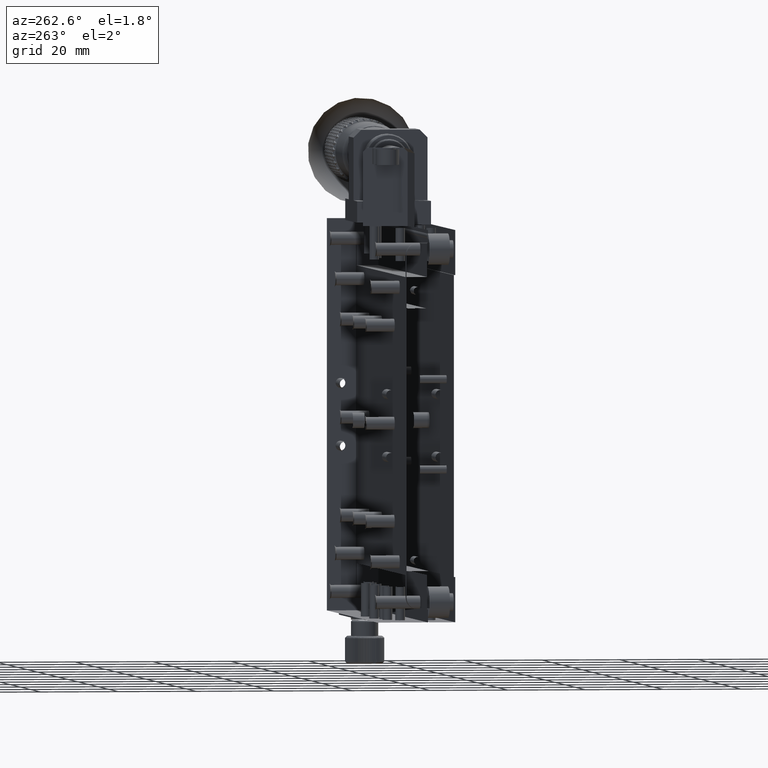
[diagram: clean part render]
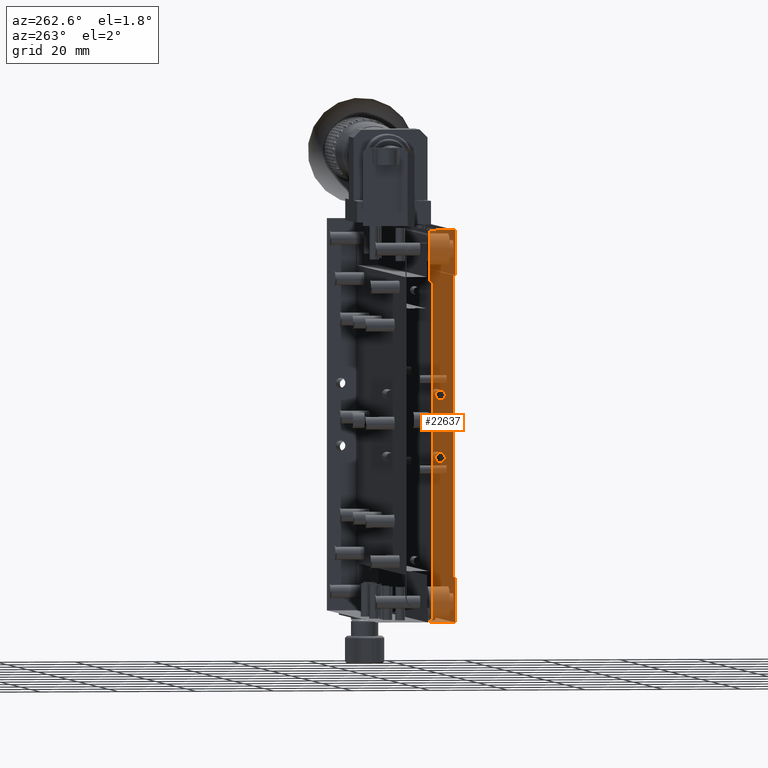
[diagram: same view with one face highlighted and labeled with its STEP entity id]
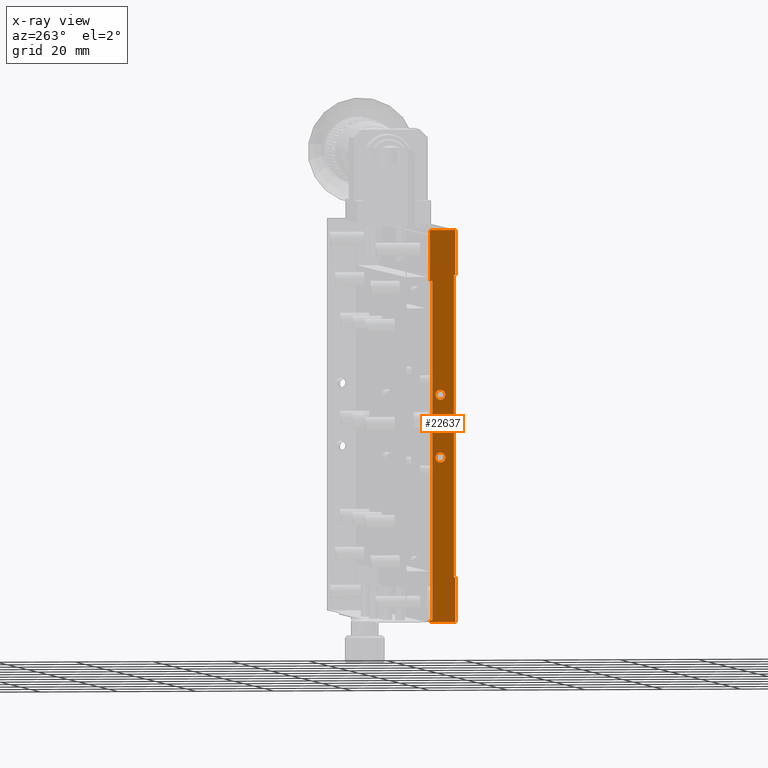
[diagram: x-ray of the same camera — body ghosted, the highlighted face saturated]
A machine part, auxiliary view. The second image highlights one B-rep face of the part: STEP entity #22637.
The next image is the same camera in x-ray: the body ghosted, the highlighted face saturated — about 0% of this face is hidden behind the body in this view.
In plain terms, the highlighted planar face has unit normal (1, -0, 0).
Its self-contained STEP definition (entity closure, byte-faithful):
#427 = CARTESIAN_POINT ( 'NONE',  ( -36.19890064642101635, -8.939356747036184103, -20.63046690101566938 ) ) ;
#699 = CARTESIAN_POINT ( 'NONE',  ( -36.19890064642102345, -8.290949976602934868, -49.99998750000001024 ) ) ;
#833 = CARTESIAN_POINT ( 'NONE',  ( -36.19890064642101635, -12.14588008402597730, 7.521463629026659881 ) ) ;
#1227 = VECTOR ( 'NONE', #65055, 1000.000000000000000 ) ;
#1523 = DIRECTION ( 'NONE',  ( 0.000000000000000000, 1.000000000000000000, 0.000000000000000000 ) ) ;
#3721 = CARTESIAN_POINT ( 'NONE',  ( -36.19890064642101635, -10.99094997660293416, 6.750012500000019955 ) ) ;
#4203 = CARTESIAN_POINT ( 'NONE',  ( -36.19890064642101635, -8.290949976602934868, -49.44570660152349717 ) ) ;
#4497 = CARTESIAN_POINT ( 'NONE',  ( -36.19890064642101635, -8.507085566747351280, -49.44570660152349717 ) ) ;
#4620 = CARTESIAN_POINT ( 'NONE',  ( -36.19890064642100924, -11.58747459379298661, -6.899868177852229501 ) ) ;
#5096 = CARTESIAN_POINT ( 'NONE',  ( -36.19890064642101635, -12.01623996683066231, -8.724379628012895793 ) ) ;
#5795 = CARTESIAN_POINT ( 'NONE',  ( -36.19890064642100924, -10.16793547856596014, 7.055207579936324080 ) ) ;
#5947 = CARTESIAN_POINT ( 'NONE',  ( -36.19890064642103056, -10.16793547856523539, -8.944792420062805505 ) ) ;
#6253 = EDGE_CURVE ( 'NONE', #80427, #50556, #71173, .T. ) ;
#6258 = ORIENTED_EDGE ( 'NONE', *, *, #34047, .T. ) ;
#7186 = CARTESIAN_POINT ( 'NONE',  ( -36.19890064642102345, -11.07033719248106962, 6.750012500000020843 ) ) ;
#7668 = CARTESIAN_POINT ( 'NONE',  ( -36.19890064642102345, -12.13680004577972760, 7.500006041613407781 ) ) ;
#7714 = CARTESIAN_POINT ( 'NONE',  ( -36.19891314642102031, -8.290949976602933091, 37.00001249999999686 ) ) ;
#8359 = CARTESIAN_POINT ( 'NONE',  ( -36.19890064642101635, -14.79094997660293309, -49.99998750000001024 ) ) ;
#8595 = DIRECTION ( 'NONE',  ( 1.000000000000000000, -0.000000000000000000, 0.000000000000000000 ) ) ;
#8635 = CARTESIAN_POINT ( 'NONE',  ( -36.19890064642102345, -12.18018308340306355, 8.385651498485945154 ) ) ;
#10493 = CARTESIAN_POINT ( 'NONE',  ( -36.19890064642101635, -11.07033719248242143, -9.249987499999981821 ) ) ;
#10551 = ORIENTED_EDGE ( 'NONE', *, *, #29337, .T. ) ;
#10556 = ORIENTED_EDGE ( 'NONE', *, *, #51100, .F. ) ;
#10875 = EDGE_CURVE ( 'NONE', #84941, #14784, #64975, .T. ) ;
#10988 = CARTESIAN_POINT ( 'NONE',  ( -36.19890064642101635, -11.30345394851186214, -6.779242374557352235 ) ) ;
#11866 = VERTEX_POINT ( 'NONE', #69565 ) ;
#12916 = LINE ( 'NONE', #35883, #84294 ) ;
#13134 = CARTESIAN_POINT ( 'NONE',  ( -36.19890064642101635, -9.892047997137092707, 7.379723948016257751 ) ) ;
#13282 = CARTESIAN_POINT ( 'NONE',  ( -36.19890064642103056, -10.56790878010031598, -6.823581793808284779 ) ) ;
#13485 = CARTESIAN_POINT ( 'NONE',  ( -36.19890064642101635, -14.79094997660293132, 38.50001249999998265 ) ) ;
#13706 = CARTESIAN_POINT ( 'NONE',  ( -36.19890064642101635, -14.79094997660293132, 50.00001250000000397 ) ) ;
#14115 = CARTESIAN_POINT ( 'NONE',  ( -36.19890064642101635, -9.770272449035102724, 8.312687014784330586 ) ) ;
#14262 = CARTESIAN_POINT ( 'NONE',  ( -36.19890064642102345, -10.04614505653979606, -7.176973001962644538 ) ) ;
#14545 = CARTESIAN_POINT ( 'NONE',  ( -36.19890064642102345, -12.16737145667775799, 8.423013804350192757 ) ) ;
#14663 = EDGE_CURVE ( 'NONE', #50556, #24835, #47726, .T. ) ;
#14748 = CARTESIAN_POINT ( 'NONE',  ( -36.19890064642100924, -9.985328543228835230, -8.762028089323912639 ) ) ;
#14784 = VERTEX_POINT ( 'NONE', #8359 ) ;
#15027 = CARTESIAN_POINT ( 'NONE',  ( -36.19890064642102345, -11.18739240275871794, 6.760983077959017429 ) ) ;
#15224 = CARTESIAN_POINT ( 'NONE',  ( -36.19890064642101635, -9.820797925667006822, -8.440084616323238365 ) ) ;
#15904 = VECTOR ( 'NONE', #85769, 1000.000000000000000 ) ;
#15986 = CARTESIAN_POINT ( 'NONE',  ( -36.19890064642101635, -10.99094997660293416, 9.250012499999966664 ) ) ;
#17820 = CARTESIAN_POINT ( 'NONE',  ( -36.19890064642100924, -14.44094997660293522, 38.50001249999998265 ) ) ;
#17863 = DIRECTION ( 'NONE',  ( 0.000000000000000000, 0.000000000000000000, -1.000000000000000000 ) ) ;
#18812 = CARTESIAN_POINT ( 'NONE',  ( -36.19890064642100924, -12.21162750417075848, -8.312662014784340414 ) ) ;
#19002 = VECTOR ( 'NONE', #25817, 1000.000000000000000 ) ;
#19319 = DIRECTION ( 'NONE',  ( 0.000000000000000000, 1.000000000000000000, 0.000000000000000000 ) ) ;
#20259 = CARTESIAN_POINT ( 'NONE',  ( -36.19890064642101635, -12.14588008402597552, -8.478536370973342784 ) ) ;
#20481 = CARTESIAN_POINT ( 'NONE',  ( -36.19890064642102345, -10.37066142461882379, 9.098914479465456395 ) ) ;
#21375 = CARTESIAN_POINT ( 'NONE',  ( -36.19890064642100924, -11.41399117310479738, 6.823606793808284721 ) ) ;
#21430 = CARTESIAN_POINT ( 'NONE',  ( -36.19890064642102345, -10.60523917224376156, 9.189217213810533025 ) ) ;
#21581 = CARTESIAN_POINT ( 'NONE',  ( -36.19890064642101635, -10.60523917224261758, -6.810782786189457205 ) ) ;
#21731 = CARTESIAN_POINT ( 'NONE',  ( -36.19890064642102345, -8.290949976602934868, -49.99998750000001024 ) ) ;
#22067 = CARTESIAN_POINT ( 'NONE',  ( -36.19890064642102345, -10.45197030957688611, -9.128090125125178034 ) ) ;
#22076 = VERTEX_POINT ( 'NONE', #23627 ) ;
#22349 = CARTESIAN_POINT ( 'NONE',  ( -36.19890064642101635, -11.52992964362830364, 9.128115125125738416 ) ) ;
#22397 = CARTESIAN_POINT ( 'NONE',  ( -36.19890064642100924, -10.91156276072453046, 9.250012499999966664 ) ) ;
#22546 = CARTESIAN_POINT ( 'NONE',  ( -36.19890064642101635, -10.66148796214867822, -6.792955597006091750 ) ) ;
#22637 = ADVANCED_FACE ( 'NONE', ( #23762, #84840, #47141 ), #39839, .T. ) ;
#23627 = CARTESIAN_POINT ( 'NONE',  ( -36.19891314642101321, -8.939356747036180550, 37.00001249999998976 ) ) ;
#23762 = FACE_OUTER_BOUND ( 'NONE', #32615, .T. ) ;
#23793 = VERTEX_POINT ( 'NONE', #15986 ) ;
#23854 = CARTESIAN_POINT ( 'NONE',  ( -36.19890064642100924, -10.67844600469533312, 6.779267374557340631 ) ) ;
#24698 = CARTESIAN_POINT ( 'NONE',  ( -36.19890064642102345, -11.61123852858858996, -9.098889479463935004 ) ) ;
#24835 = VERTEX_POINT ( 'NONE', #61733 ) ;
#25169 = B_SPLINE_CURVE_WITH_KNOTS ( 'NONE', 3,
 ( #7714, #64971, #94800, #28781 ),
 .UNSPECIFIED., .F., .F.,
 ( 4, 4 ),
 ( 0.000000000000000000, 1.000000000000000000 ),
 .UNSPECIFIED. ) ;
#25817 = DIRECTION ( 'NONE',  ( -0.000000000000000000, -1.000000000000000000, -0.000000000000000000 ) ) ;
#25829 = VERTEX_POINT ( 'NONE', #35904 ) ;
#27021 = ORIENTED_EDGE ( 'NONE', *, *, #43540, .T. ) ;
#27307 = B_SPLINE_CURVE_WITH_KNOTS ( 'NONE', 3,
 ( #76053, #10493, #47125, #45696, #32024, #91688, #69694, #24698, #77016, #92179, #5096, #79441, #85802, #65255, #20259, #18812, #41274, #93140, #78480, #56932, #64765, #34921, #71156, #41770, #70683, #55949, #63799, #4620, #93632, #63307, #48588, #10988, #86785, #86303 ),
 .UNSPECIFIED., .F., .F.,
 ( 4, 1, 1, 2, 2, 2, 1, 1, 2, 2, 2, 1, 1, 2, 2, 2, 1, 1, 2, 2, 4 ),
 ( 0.000000000000000000, 0.06249999999999848732, 0.09374999999999841793, 0.1093749999999981959, 0.1249999999999979738, 0.2499999999999959477, 0.3124999999999949485, 0.3437499999999947820, 0.3593749999999952816, 0.3749999999999957812, 0.4999999999999938938, 0.5624999999999928946, 0.5937499999999924505, 0.6093749999999924505, 0.6249999999999925615, 0.7499999999999970024, 0.8124999999999993339, 0.8437500000000002220, 0.8593750000000007772, 0.8750000000000012212, 1.000000000000000000 ),
 .UNSPECIFIED. ) ;
#27391 = ORIENTED_EDGE ( 'NONE', *, *, #14663, .T. ) ;
#27877 = ORIENTED_EDGE ( 'NONE', *, *, #43473, .T. ) ;
#27968 = CARTESIAN_POINT ( 'NONE',  ( -36.19890064642102345, -10.67844600469264904, -9.220732625442661146 ) ) ;
#28307 = DIRECTION ( 'NONE',  ( 0.000000000000000000, 0.000000000000000000, -1.000000000000000000 ) ) ;
#28781 = CARTESIAN_POINT ( 'NONE',  ( -36.19891314642101321, -8.939356747036180550, 37.00001249999998976 ) ) ;
#29185 = VERTEX_POINT ( 'NONE', #39959 ) ;
#29220 = CARTESIAN_POINT ( 'NONE',  ( -36.19890064642101635, -11.71534210461376269, 9.025302490229297092 ) ) ;
#29337 = EDGE_CURVE ( 'NONE', #69829, #84941, #49699, .T. ) ;
#29751 = CARTESIAN_POINT ( 'NONE',  ( -36.19890064642102345, -9.890830654456095772, 8.596537117191173749 ) ) ;
#29769 = CARTESIAN_POINT ( 'NONE',  ( -36.19890064642101635, -8.939356747036184103, 8.184772799492163742 ) ) ;
#30181 = CARTESIAN_POINT ( 'NONE',  ( -36.19890064642100924, -11.49095643498906938, 9.145862569177163337 ) ) ;
#30382 = LINE ( 'NONE', #74400, #42388 ) ;
#30473 = CARTESIAN_POINT ( 'NONE',  ( -36.19890064642100924, -14.44094997660293522, -38.49998749999999603 ) ) ;
#30514 = CARTESIAN_POINT ( 'NONE',  ( -36.19890064642101635, -8.290949976602934868, -49.63046690101567293 ) ) ;
#30603 = CARTESIAN_POINT ( 'NONE',  ( -36.19890064642101635, -14.79094997660293132, -49.44570660152349717 ) ) ;
#30697 = CARTESIAN_POINT ( 'NONE',  ( -36.19890064642100214, -10.49094351821675630, 6.854162430822731800 ) ) ;
#31179 = CARTESIAN_POINT ( 'NONE',  ( -36.19890064642101635, -10.39442535941320500, 6.899893177851711634 ) ) ;
#32024 = CARTESIAN_POINT ( 'NONE',  ( -36.19890064642101635, -11.37666078096302158, -9.189192213810542853 ) ) ;
#32615 = EDGE_LOOP ( 'NONE', ( #10551, #87305, #27021, #65158, #27391, #6258, #63811, #79551, #60248, #95566, #27877, #10556 ) ) ;
#33483 = LINE ( 'NONE', #86316, #34583 ) ;
#34047 = EDGE_CURVE ( 'NONE', #24835, #22076, #85915, .T. ) ;
#34583 = VECTOR ( 'NONE', #19319, 1000.000000000000000 ) ;
#34921 = CARTESIAN_POINT ( 'NONE',  ( -36.19890064642102345, -12.16737145667775088, -7.576986195649650924 ) ) ;
#35274 = CARTESIAN_POINT ( 'NONE',  ( -36.19890064642102345, -9.740916325652348107, -8.079289612622405414 ) ) ;
#35618 = CARTESIAN_POINT ( 'NONE',  ( -36.19890064642102345, -10.55085286027957459, 9.170164550935828274 ) ) ;
#35883 = CARTESIAN_POINT ( 'NONE',  ( -36.19890064642101635, -14.79094997660293487, -49.44570660152349717 ) ) ;
#35904 = CARTESIAN_POINT ( 'NONE',  ( -36.19890064642102345, -14.79094997660293309, 50.00001249999999686 ) ) ;
#36261 = CARTESIAN_POINT ( 'NONE',  ( -36.19890064642102345, -9.862847351477480373, -7.461007832974239307 ) ) ;
#36359 = EDGE_CURVE ( 'NONE', #25829, #71212, #12916, .T. ) ;
#36590 = CARTESIAN_POINT ( 'NONE',  ( -36.19890064642101635, -9.965659986375204227, 8.724404628012884189 ) ) ;
#36731 = CARTESIAN_POINT ( 'NONE',  ( -36.19890064642102345, -9.741017278504182642, -7.841383274755217236 ) ) ;
#37501 = CARTESIAN_POINT ( 'NONE',  ( -36.19890064642102345, -11.61123852858713157, 6.901110520534336601 ) ) ;
#37826 = ORIENTED_EDGE ( 'NONE', *, *, #55882, .T. ) ;
#38443 = CARTESIAN_POINT ( 'NONE',  ( -36.19890064642101635, -11.99657140997865135, 8.762053089322556332 ) ) ;
#39839 = PLANE ( 'NONE',  #76726 ) ;
#39959 = CARTESIAN_POINT ( 'NONE',  ( -36.19890064642101635, -8.290949976602934868, 50.00001249999999686 ) ) ;
#40458 = CARTESIAN_POINT ( 'NONE',  ( -36.19890064642101635, -14.79094997660293132, -38.49998750000000314 ) ) ;
#41155 = CARTESIAN_POINT ( 'NONE',  ( -36.19891272975981877, -8.290949976602934868, -49.44570660440748355 ) ) ;
#41274 = CARTESIAN_POINT ( 'NONE',  ( -36.19890064642101635, -12.24088267470169100, -8.158591725243169890 ) ) ;
#41770 = CARTESIAN_POINT ( 'NONE',  ( -36.19890064642102345, -12.08985195606879159, -7.379698948016012672 ) ) ;
#42388 = VECTOR ( 'NONE', #1523, 1000.000000000000000 ) ;
#43098 = CARTESIAN_POINT ( 'NONE',  ( -36.19890064642102345, -9.801716869802813648, -8.385626498486919544 ) ) ;
#43473 = EDGE_CURVE ( 'NONE', #71212, #79014, #33483, .T. ) ;
#43540 = EDGE_CURVE ( 'NONE', #14784, #80427, #30382, .T. ) ;
#43864 = CARTESIAN_POINT ( 'NONE',  ( -36.19890064642102345, -12.09106929874989511, 7.403487882809122844 ) ) ;
#43914 = CARTESIAN_POINT ( 'NONE',  ( -36.19890064642102345, -9.740916325652348107, 7.920710387378273154 ) ) ;
#44062 = CARTESIAN_POINT ( 'NONE',  ( -36.19890064642101635, -9.836019869179901676, -7.521438629026504508 ) ) ;
#44340 = CARTESIAN_POINT ( 'NONE',  ( -36.19890064642102345, -12.16110202753868741, 8.440109616323372421 ) ) ;
#44467 = CARTESIAN_POINT ( 'NONE',  ( -36.19890064642101635, -10.99094997660293593, -6.749987500000033336 ) ) ;
#44532 = CARTESIAN_POINT ( 'NONE',  ( -36.19890064642101635, -10.99094997660293593, -9.249987499999980045 ) ) ;
#44676 = ORIENTED_EDGE ( 'NONE', *, *, #56339, .T. ) ;
#44791 = CARTESIAN_POINT ( 'NONE',  ( -36.19890064642100924, -12.24098362755352021, 8.079314612621237401 ) ) ;
#44850 = CARTESIAN_POINT ( 'NONE',  ( -36.19890064642101635, -9.751861665398385171, 7.803719004542941207 ) ) ;
#45330 = CARTESIAN_POINT ( 'NONE',  ( -36.19890064642101635, -10.51237978777001381, 6.845090842311309487 ) ) ;
#45621 = CARTESIAN_POINT ( 'NONE',  ( -36.19891272975981877, -8.290949976602934868, -49.44570660440748355 ) ) ;
#45696 = CARTESIAN_POINT ( 'NONE',  ( -36.19890064642102345, -11.32041199105684193, -9.207019402993918078 ) ) ;
#46458 = EDGE_CURVE ( 'NONE', #23793, #95103, #83380, .T. ) ;
#47125 = CARTESIAN_POINT ( 'NONE',  ( -36.19890064642101635, -11.18739240276108582, -9.239016922040985236 ) ) ;
#47141 = FACE_BOUND ( 'NONE', #52576, .T. ) ;
#47726 = B_SPLINE_CURVE_WITH_KNOTS ( 'NONE', 3,
 ( #41155, #4497, #48956, #92552 ),
 .UNSPECIFIED., .F., .F.,
 ( 4, 4 ),
 ( 0.000000000000000000, 1.000000000000000000 ),
 .UNSPECIFIED. ) ;
#48588 = CARTESIAN_POINT ( 'NONE',  ( -36.19890064642102345, -11.46952016543569464, -6.845065842311323756 ) ) ;
#48956 = CARTESIAN_POINT ( 'NONE',  ( -36.19890064642101635, -8.723221156891765915, -49.44570660152349717 ) ) ;
#49699 = LINE ( 'NONE', #40458, #19002 ) ;
#50276 = CARTESIAN_POINT ( 'NONE',  ( -36.19890064642102345, -10.22890938727856991, 9.005633933373355049 ) ) ;
#50556 = VERTEX_POINT ( 'NONE', #94128 ) ;
#50834 = LINE ( 'NONE', #13706, #1227 ) ;
#51100 = EDGE_CURVE ( 'NONE', #69829, #79014, #55918, .T. ) ;
#51178 = CARTESIAN_POINT ( 'NONE',  ( -36.19890064642102345, -12.08985195606909180, 8.620301051983965124 ) ) ;
#51234 = CARTESIAN_POINT ( 'NONE',  ( -36.19890064642102345, -10.56790878010094659, 9.176418206191703675 ) ) ;
#51384 = CARTESIAN_POINT ( 'NONE',  ( -36.19890064642102345, -10.55085286027987834, -6.829835449063912378 ) ) ;
#51716 = CARTESIAN_POINT ( 'NONE',  ( -36.19890064642101635, -9.801716869802811871, 7.614373501513643561 ) ) ;
#51862 = CARTESIAN_POINT ( 'NONE',  ( -36.19890064642101635, -10.83181880034342370, -9.249987499999980045 ) ) ;
#52147 = CARTESIAN_POINT ( 'NONE',  ( -36.19890064642101635, -11.30345394851159568, 9.220757625442647765 ) ) ;
#52200 = CARTESIAN_POINT ( 'NONE',  ( -36.19890064642103056, -10.04614505654036805, 8.823026998038068669 ) ) ;
#52350 = CARTESIAN_POINT ( 'NONE',  ( -36.19890064642103766, -9.770272449035109830, -7.687312985217025663 ) ) ;
#52576 = EDGE_LOOP ( 'NONE', ( #37826, #44676 ) ) ;
#52904 = B_SPLINE_CURVE_WITH_KNOTS ( 'NONE', 3,
 ( #59725, #88594, #89562, #22546, #21581, #13282, #51384, #80284, #81256, #14262, #94972, #74397, #36261, #65627, #44062, #52350, #36731, #35274, #66603, #80760, #43098, #58264, #15224, #88115, #14748, #5947, #59239, #89070, #22067, #72483, #81740, #27968, #51862, #44532 ),
 .UNSPECIFIED., .F., .F.,
 ( 4, 1, 1, 2, 2, 2, 1, 1, 2, 2, 2, 1, 1, 2, 2, 2, 1, 1, 2, 2, 4 ),
 ( 0.000000000000000000, 0.06250000000000281719, 0.09375000000000353884, 0.1093750000000039968, 0.1250000000000044409, 0.2500000000000022760, 0.3125000000000016653, 0.3437500000000013878, 0.3593750000000009992, 0.3750000000000005551, 0.4999999999999996114, 0.5625000000000004441, 0.5937500000000008882, 0.6093750000000011102, 0.6250000000000014433, 0.7500000000000022204, 0.8125000000000026645, 0.8437500000000026645, 0.8593750000000026645, 0.8750000000000026645, 1.000000000000000000 ),
 .UNSPECIFIED. ) ;
#53122 = CARTESIAN_POINT ( 'NONE',  ( -36.19890064642100924, -12.19802604646952560, 8.329362816427460459 ) ) ;
#53658 = CARTESIAN_POINT ( 'NONE',  ( -36.19890064642101635, -10.99094997660293416, 6.750012500000019955 ) ) ;
#54081 = LINE ( 'NONE', #4203, #62082 ) ;
#55882 = EDGE_CURVE ( 'NONE', #73496, #94493, #27307, .T. ) ;
#55918 = LINE ( 'NONE', #17820, #15904 ) ;
#55949 = CARTESIAN_POINT ( 'NONE',  ( -36.19890064642102345, -11.81396447464015864, -7.055182579936725595 ) ) ;
#56339 = EDGE_CURVE ( 'NONE', #94493, #73496, #52904, .T. ) ;
#56796 = CARTESIAN_POINT ( 'NONE',  ( -36.19891314642101321, -8.939356747036180550, -49.44570660152349717 ) ) ;
#56932 = CARTESIAN_POINT ( 'NONE',  ( -36.19890064642102345, -12.19802604646952737, -7.670637183572106110 ) ) ;
#58264 = CARTESIAN_POINT ( 'NONE',  ( -36.19890064642102345, -9.814528496528122758, -8.422988804350737269 ) ) ;
#58598 = CARTESIAN_POINT ( 'NONE',  ( -36.19890064642101635, -10.99094997660293416, 9.250012499999966664 ) ) ;
#59239 = CARTESIAN_POINT ( 'NONE',  ( -36.19890064642101635, -10.26655784859068810, -9.025277490228138078 ) ) ;
#59725 = CARTESIAN_POINT ( 'NONE',  ( -36.19890064642101635, -10.99094997660293593, -6.749987500000033336 ) ) ;
#60006 = CARTESIAN_POINT ( 'NONE',  ( -36.19890064642101635, -10.99094997660293416, 9.250012499999966664 ) ) ;
#60248 = ORIENTED_EDGE ( 'NONE', *, *, #80937, .T. ) ;
#60487 = CARTESIAN_POINT ( 'NONE',  ( -36.19890064642101635, -12.11905260172799359, 7.461032832973825357 ) ) ;
#60542 = CARTESIAN_POINT ( 'NONE',  ( -36.19890064642100924, -10.83181880034611666, 6.750012500000019067 ) ) ;
#61733 = CARTESIAN_POINT ( 'NONE',  ( -36.19891314642101321, -8.939356747036180550, -49.44570660152349717 ) ) ;
#62082 = VECTOR ( 'NONE', #84421, 1000.000000000000000 ) ;
#63307 = CARTESIAN_POINT ( 'NONE',  ( -36.19890064642102345, -11.49095643498922925, -6.854137430822925481 ) ) ;
#63799 = CARTESIAN_POINT ( 'NONE',  ( -36.19890064642102345, -11.71534210461434000, -6.974697509771035087 ) ) ;
#63811 = ORIENTED_EDGE ( 'NONE', *, *, #95659, .F. ) ;
#64765 = CARTESIAN_POINT ( 'NONE',  ( -36.19890064642101635, -12.18018308340305644, -7.614348501513772405 ) ) ;
#64971 = CARTESIAN_POINT ( 'NONE',  ( -36.19892564642101718, -8.507085566747349503, 37.00001249999998976 ) ) ;
#64975 = LINE ( 'NONE', #94807, #83985 ) ;
#65055 = DIRECTION ( 'NONE',  ( -0.000000000000000000, -1.000000000000000000, -0.000000000000000000 ) ) ;
#65158 = ORIENTED_EDGE ( 'NONE', *, *, #6253, .T. ) ;
#65255 = CARTESIAN_POINT ( 'NONE',  ( -36.19890064642100924, -12.13680004577967786, -8.499993958386696136 ) ) ;
#65478 = CARTESIAN_POINT ( 'NONE',  ( -36.19890064642100924, -9.845099907426186903, 8.500018958386679202 ) ) ;
#65627 = CARTESIAN_POINT ( 'NONE',  ( -36.19890064642102345, -9.845099907425924002, -7.499981041613641430 ) ) ;
#66409 = CARTESIAN_POINT ( 'NONE',  ( -36.19890064642100924, -11.15008115286081924, 9.250012499999964888 ) ) ;
#66463 = CARTESIAN_POINT ( 'NONE',  ( -36.19890064642101635, -9.783873906736346271, 7.670662183571900883 ) ) ;
#66603 = CARTESIAN_POINT ( 'NONE',  ( -36.19890064642100924, -9.751861665398388723, -8.196280995458240071 ) ) ;
#67041 = ORIENTED_EDGE ( 'NONE', *, *, #46458, .T. ) ;
#67224 = EDGE_LOOP ( 'NONE', ( #85077, #67041 ) ) ;
#67374 = CARTESIAN_POINT ( 'NONE',  ( -36.19890064642101635, -11.81396447463982646, 8.944817420063467139 ) ) ;
#67424 = CARTESIAN_POINT ( 'NONE',  ( -36.19890064642101635, -10.66148796215044925, 9.207044402993904697 ) ) ;
#67860 = CARTESIAN_POINT ( 'NONE',  ( -36.19890064642101635, -11.37666078096188649, 6.810807786189456259 ) ) ;
#68187 = CARTESIAN_POINT ( 'NONE',  ( -36.19890064642101635, -8.290949976602934868, -49.81522720050783448 ) ) ;
#68207 = CARTESIAN_POINT ( 'NONE',  ( -36.19890064642101635, -14.79094997660293487, -38.49998749999999603 ) ) ;
#68332 = CARTESIAN_POINT ( 'NONE',  ( -36.19890064642101635, -12.01623996683081863, 7.275620371987507440 ) ) ;
#68672 = B_SPLINE_CURVE_WITH_KNOTS ( 'NONE', 3,
 ( #82503, #7186, #15027, #74687, #67860, #21375, #75172, #37501, #81541, #75640, #68332, #43864, #60487, #7668, #833, #88876, #90324, #44791, #89362, #53122, #8635, #14545, #44340, #51178, #38443, #67374, #29220, #81050, #22349, #30181, #74212, #52147, #66409, #60006 ),
 .UNSPECIFIED., .F., .F.,
 ( 4, 1, 1, 2, 2, 2, 1, 1, 2, 2, 2, 1, 1, 2, 2, 2, 1, 1, 2, 2, 4 ),
 ( 0.000000000000000000, 0.06250000000000342781, 0.09375000000000584255, 0.1093750000000064670, 0.1250000000000071054, 0.2500000000000109912, 0.3125000000000134337, 0.3437500000000149880, 0.3593750000000154321, 0.3750000000000158762, 0.5000000000000145439, 0.5625000000000152101, 0.5937500000000154321, 0.6093750000000155431, 0.6250000000000156541, 0.7500000000000119904, 0.8125000000000097700, 0.8437500000000096589, 0.8593750000000089928, 0.8750000000000082157, 1.000000000000000000 ),
 .UNSPECIFIED. ) ;
#69565 = CARTESIAN_POINT ( 'NONE',  ( -36.19891314642102031, -8.290949976602933091, 37.00001249999999686 ) ) ;
#69694 = CARTESIAN_POINT ( 'NONE',  ( -36.19890064642102345, -11.43104709292610188, -9.170139550936033501 ) ) ;
#69829 = VERTEX_POINT ( 'NONE', #30473 ) ;
#70683 = CARTESIAN_POINT ( 'NONE',  ( -36.19890064642100924, -11.99657140997800653, -7.237946910677068857 ) ) ;
#71011 = CARTESIAN_POINT ( 'NONE',  ( -36.19890064642101635, -10.99094997660293593, -9.249987499999980045 ) ) ;
#71156 = CARTESIAN_POINT ( 'NONE',  ( -36.19890064642101635, -12.16110202753872116, -7.559890383676630243 ) ) ;
#71173 = B_SPLINE_CURVE_WITH_KNOTS ( 'NONE', 3,
 ( #699, #68187, #30514, #45621 ),
 .UNSPECIFIED., .F., .F.,
 ( 4, 4 ),
 ( 0.000000000000000000, 1.000000000000000000 ),
 .UNSPECIFIED. ) ;
#71212 = VERTEX_POINT ( 'NONE', #13485 ) ;
#72047 = EDGE_CURVE ( 'NONE', #11866, #29185, #54081, .T. ) ;
#72483 = CARTESIAN_POINT ( 'NONE',  ( -36.19890064642102345, -10.49094351821641524, -9.145837569176853421 ) ) ;
#72816 = CARTESIAN_POINT ( 'NONE',  ( -36.19890064642100924, -9.985328543227366183, 7.237971910677827303 ) ) ;
#73496 = VERTEX_POINT ( 'NONE', #71011 ) ;
#74212 = CARTESIAN_POINT ( 'NONE',  ( -36.19890064642100924, -11.46952016543572483, 9.154934157688680685 ) ) ;
#74397 = CARTESIAN_POINT ( 'NONE',  ( -36.19890064642100924, -9.890830654455353255, -7.403462882809756174 ) ) ;
#74400 = CARTESIAN_POINT ( 'NONE',  ( -36.19890064642101635, -14.79094997660293132, -49.99998750000001024 ) ) ;
#74687 = CARTESIAN_POINT ( 'NONE',  ( -36.19890064642102345, -11.32041199105506912, 6.792980597006078369 ) ) ;
#74702 = EDGE_CURVE ( 'NONE', #95103, #23793, #68672, .T. ) ;
#74741 = CARTESIAN_POINT ( 'NONE',  ( -36.19890064642101635, -9.814528496528117429, 7.577011195649575370 ) ) ;
#75172 = CARTESIAN_POINT ( 'NONE',  ( -36.19890064642102345, -11.43104709292628485, 6.829860449064184102 ) ) ;
#75640 = CARTESIAN_POINT ( 'NONE',  ( -36.19890064642102345, -11.93575489666559797, 7.176998001962154206 ) ) ;
#76053 = CARTESIAN_POINT ( 'NONE',  ( -36.19890064642101635, -10.99094997660293593, -9.249987499999980045 ) ) ;
#76726 = AXIS2_PLACEMENT_3D ( 'NONE', #30603, #8595, #17863 ) ;
#77016 = CARTESIAN_POINT ( 'NONE',  ( -36.19890064642102345, -11.75299056592730729, -9.005608933373370206 ) ) ;
#77123 = CARTESIAN_POINT ( 'NONE',  ( -36.19890064642101635, -10.45197030957750073, 6.871909874874086555 ) ) ;
#78480 = CARTESIAN_POINT ( 'NONE',  ( -36.19890064642101635, -12.23003828780748314, -7.803694004543195284 ) ) ;
#79014 = VERTEX_POINT ( 'NONE', #93943 ) ;
#79441 = CARTESIAN_POINT ( 'NONE',  ( -36.19890064642102345, -12.09106929874977965, -8.596512117191181801 ) ) ;
#79551 = ORIENTED_EDGE ( 'NONE', *, *, #72047, .T. ) ;
#80139 = CARTESIAN_POINT ( 'NONE',  ( -36.19890064642100924, -9.820797925667145378, 7.559915383676584000 ) ) ;
#80284 = CARTESIAN_POINT ( 'NONE',  ( -36.19890064642102345, -10.37066142461644525, -6.901085520536644147 ) ) ;
#80427 = VERTEX_POINT ( 'NONE', #21731 ) ;
#80760 = CARTESIAN_POINT ( 'NONE',  ( -36.19890064642101635, -9.783873906736351600, -8.329337816428980190 ) ) ;
#80883 = DIRECTION ( 'NONE',  ( 0.000000000000000000, 0.000000000000000000, -1.000000000000000000 ) ) ;
#80937 = EDGE_CURVE ( 'NONE', #29185, #25829, #50834, .T. ) ;
#81050 = CARTESIAN_POINT ( 'NONE',  ( -36.19890064642102345, -11.58747459379256206, 9.100131822148016525 ) ) ;
#81107 = CARTESIAN_POINT ( 'NONE',  ( -36.19890064642100924, -9.862847351477954660, 8.538992167026352220 ) ) ;
#81256 = CARTESIAN_POINT ( 'NONE',  ( -36.19890064642101635, -10.22890938727971211, -6.994366066625228306 ) ) ;
#81541 = CARTESIAN_POINT ( 'NONE',  ( -36.19890064642102345, -11.75299056592711366, 6.994391066626169717 ) ) ;
#81589 = CARTESIAN_POINT ( 'NONE',  ( -36.19890064642101635, -10.79450755044668497, 9.239041922040973631 ) ) ;
#81740 = CARTESIAN_POINT ( 'NONE',  ( -36.19890064642101635, -10.51237978777034421, -9.154909157688690513 ) ) ;
#82080 = CARTESIAN_POINT ( 'NONE',  ( -36.19890064642101635, -9.836019869179891018, 8.478561370973327627 ) ) ;
#82503 = CARTESIAN_POINT ( 'NONE',  ( -36.19890064642101635, -10.99094997660293416, 6.750012500000019955 ) ) ;
#83380 = B_SPLINE_CURVE_WITH_KNOTS ( 'NONE', 3,
 ( #58598, #22397, #81589, #67424, #21430, #51234, #35618, #20481, #50276, #52200, #36590, #29751, #81107, #65478, #82080, #14115, #96264, #43914, #44850, #66463, #51716, #74741, #80139, #13134, #72816, #5795, #95316, #31179, #77123, #30697, #45330, #23854, #60542, #53658 ),
 .UNSPECIFIED., .F., .F.,
 ( 4, 1, 1, 2, 2, 2, 1, 1, 2, 2, 2, 1, 1, 2, 2, 2, 1, 1, 2, 2, 4 ),
 ( 0.000000000000000000, 0.06249999999999837630, 0.09374999999999825140, 0.1093749999999986539, 0.1249999999999990563, 0.2500000000000022760, 0.3125000000000038858, 0.3437500000000043299, 0.3593750000000045519, 0.3750000000000047740, 0.5000000000000048850, 0.5625000000000042188, 0.5937500000000037748, 0.6093750000000035527, 0.6250000000000034417, 0.7500000000000004441, 0.8124999999999990008, 0.8437499999999981126, 0.8593749999999976685, 0.8749999999999972244, 1.000000000000000000 ),
 .UNSPECIFIED. ) ;
#83985 = VECTOR ( 'NONE', #28307, 1000.000000000000000 ) ;
#84294 = VECTOR ( 'NONE', #80883, 1000.000000000000000 ) ;
#84421 = DIRECTION ( 'NONE',  ( -0.000000000000000000, -0.000000000000000000, 1.000000000000000000 ) ) ;
#84840 = FACE_BOUND ( 'NONE', #67224, .T. ) ;
#84941 = VERTEX_POINT ( 'NONE', #68207 ) ;
#85077 = ORIENTED_EDGE ( 'NONE', *, *, #74702, .T. ) ;
#85769 = DIRECTION ( 'NONE',  ( 0.000000000000000000, -0.000000000000000000, 1.000000000000000000 ) ) ;
#85802 = CARTESIAN_POINT ( 'NONE',  ( -36.19890064642102345, -12.11905260172791365, -8.538967167026363825 ) ) ;
#85915 = B_SPLINE_CURVE_WITH_KNOTS ( 'NONE', 3,
 ( #56796, #427, #29769, #95819 ),
 .UNSPECIFIED., .F., .F.,
 ( 4, 4 ),
 ( 0.000000000000000000, 1.000000000000000000 ),
 .UNSPECIFIED. ) ;
#86303 = CARTESIAN_POINT ( 'NONE',  ( -36.19890064642101635, -10.99094997660293593, -6.749987500000033336 ) ) ;
#86316 = CARTESIAN_POINT ( 'NONE',  ( -36.19890064642101635, -14.79094997660293132, 38.50001249999998976 ) ) ;
#86785 = CARTESIAN_POINT ( 'NONE',  ( -36.19890064642100924, -11.15008115286108570, -6.749987500000033336 ) ) ;
#87305 = ORIENTED_EDGE ( 'NONE', *, *, #10875, .T. ) ;
#88115 = CARTESIAN_POINT ( 'NONE',  ( -36.19890064642102345, -9.892047997138236681, -8.620276051985161558 ) ) ;
#88594 = CARTESIAN_POINT ( 'NONE',  ( -36.19890064642101635, -10.91156276072318398, -6.749987500000035112 ) ) ;
#88876 = CARTESIAN_POINT ( 'NONE',  ( -36.19890064642102345, -12.21162750417076559, 7.687337985215659586 ) ) ;
#89070 = CARTESIAN_POINT ( 'NONE',  ( -36.19890064642100924, -10.39442535941224577, -9.100106822147148833 ) ) ;
#89362 = CARTESIAN_POINT ( 'NONE',  ( -36.19890064642101635, -12.23003828780747959, 8.196305995456214077 ) ) ;
#89562 = CARTESIAN_POINT ( 'NONE',  ( -36.19890064642101635, -10.79450755044432420, -6.760958077959030810 ) ) ;
#90324 = CARTESIAN_POINT ( 'NONE',  ( -36.19890064642101635, -12.24088267470169100, 7.841408274757507790 ) ) ;
#91688 = CARTESIAN_POINT ( 'NONE',  ( -36.19890064642102345, -11.41399117310543510, -9.176393206191717056 ) ) ;
#92179 = CARTESIAN_POINT ( 'NONE',  ( -36.19890064642103056, -11.93575489666550915, -8.823001998038080274 ) ) ;
#92552 = CARTESIAN_POINT ( 'NONE',  ( -36.19891314642101321, -8.939356747036180550, -49.44570660152349717 ) ) ;
#93140 = CARTESIAN_POINT ( 'NONE',  ( -36.19890064642101635, -12.24098362755352021, -7.920685387378425091 ) ) ;
#93632 = CARTESIAN_POINT ( 'NONE',  ( -36.19890064642102345, -11.52992964362858253, -6.871884874874424121 ) ) ;
#93943 = CARTESIAN_POINT ( 'NONE',  ( -36.19890064642100924, -14.44094997660293522, 38.50001249999998265 ) ) ;
#94128 = CARTESIAN_POINT ( 'NONE',  ( -36.19891272975981877, -8.290949976602934868, -49.44570660440748355 ) ) ;
#94493 = VERTEX_POINT ( 'NONE', #44467 ) ;
#94800 = CARTESIAN_POINT ( 'NONE',  ( -36.19892564642101718, -8.723221156891762362, 37.00001249999998976 ) ) ;
#94807 = CARTESIAN_POINT ( 'NONE',  ( -36.19890064642101635, -14.79094997660293487, -49.44570660152349717 ) ) ;
#94972 = CARTESIAN_POINT ( 'NONE',  ( -36.19890064642102345, -9.965659986374213020, -7.275595371988348603 ) ) ;
#95103 = VERTEX_POINT ( 'NONE', #3721 ) ;
#95316 = CARTESIAN_POINT ( 'NONE',  ( -36.19890064642101635, -10.26655784859196352, 6.974722509770342249 ) ) ;
#95566 = ORIENTED_EDGE ( 'NONE', *, *, #36359, .T. ) ;
#95659 = EDGE_CURVE ( 'NONE', #11866, #22076, #25169, .T. ) ;
#95819 = CARTESIAN_POINT ( 'NONE',  ( -36.19891314642101321, -8.939356747036180550, 37.00001249999998976 ) ) ;
#96264 = CARTESIAN_POINT ( 'NONE',  ( -36.19890064642101635, -9.741017278504177312, 8.158616725243438950 ) ) ;